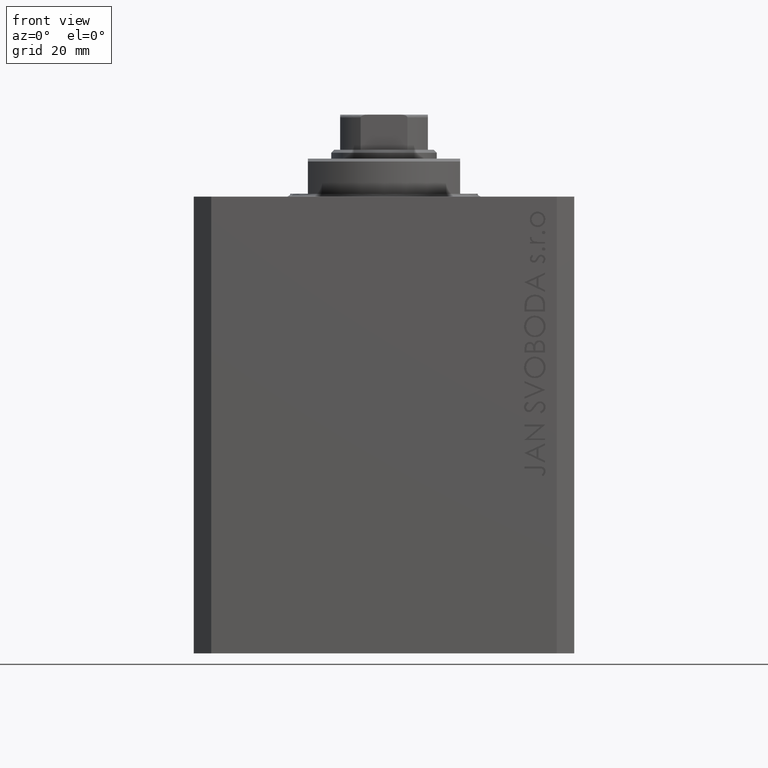
[diagram: clean part render]
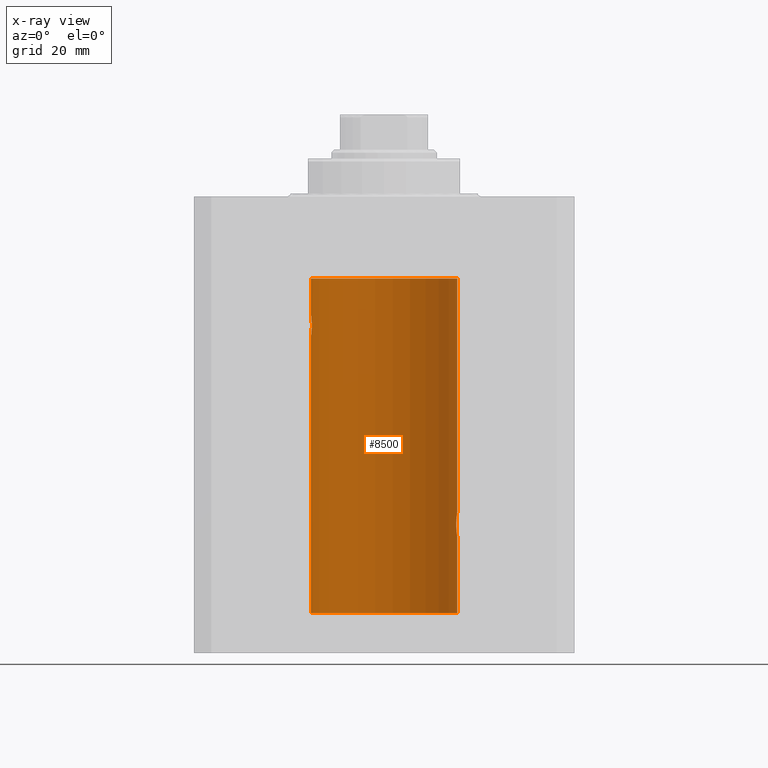
[diagram: x-ray — body ghosted, one internal face saturated and labeled with its STEP entity id]
A machine part, front view, then the same camera in x-ray: the body is ghosted and one INTERNAL B-rep face — a face not visible from any outside direction — is saturated and labeled: STEP entity #8500.
In plain terms, the highlighted cylindrical surface (partial cylindrical patch) has radius 12.5 mm, axis along (0, 0, 1).
Its self-contained STEP definition (entity closure, byte-faithful):
#115 = CARTESIAN_POINT ( 'NONE',  ( 12.49789833780794268, 0.2625555164371063399, -57.98698170822146380 ) ) ;
#707 = CIRCLE ( 'NONE', #4525, 12.50000000000000000 ) ;
#784 = VERTEX_POINT ( 'NONE', #19279 ) ;
#1329 = CARTESIAN_POINT ( 'NONE',  ( -12.50000000000000000, 1.530808426276628993E-15, -23.99999999999999645 ) ) ;
#1397 = VERTEX_POINT ( 'NONE', #9822 ) ;
#1552 = EDGE_CURVE ( 'NONE', #3628, #7653, #11249, .T. ) ;
#2167 = ORIENTED_EDGE ( 'NONE', *, *, #43763, .T. ) ;
#2883 = CARTESIAN_POINT ( 'NONE',  ( 12.50000000000000000, 0.000000000000000000, -71.09999999999999432 ) ) ;
#2994 = CARTESIAN_POINT ( 'NONE',  ( 12.48390005916862933, 0.6457215011736597843, -57.89742771554266909 ) ) ;
#3588 = DIRECTION ( 'NONE',  ( -0.000000000000000000, -0.000000000000000000, 1.000000000000000000 ) ) ;
#3628 = VERTEX_POINT ( 'NONE', #30322 ) ;
#3945 = CARTESIAN_POINT ( 'NONE',  ( 12.50000000000000178, 0.1324055009716459952, -58.00000000000000711 ) ) ;
#4019 = CARTESIAN_POINT ( 'NONE',  ( 12.50000000000000000, 0.000000000000000000, -13.99999999999999822 ) ) ;
#4451 = CARTESIAN_POINT ( 'NONE',  ( -12.37018026341338839, 1.797558627508998086, -22.88656313533016373 ) ) ;
#4515 = DIRECTION ( 'NONE',  ( 1.000000000000000000, 0.000000000000000000, 0.000000000000000000 ) ) ;
#4525 = AXIS2_PLACEMENT_3D ( 'NONE', #26252, #18602, #4515 ) ;
#5444 = LINE ( 'NONE', #23817, #32317 ) ;
#6808 = CARTESIAN_POINT ( 'NONE',  ( 12.34779119491631150, 1.947363444907014518, -56.52502775168252214 ) ) ;
#6949 = CARTESIAN_POINT ( 'NONE',  ( 12.34110728646152211, 1.986893050944461780, -55.73661347764981144 ) ) ;
#7059 = DIRECTION ( 'NONE',  ( -0.000000000000000000, -0.000000000000000000, 1.000000000000000000 ) ) ;
#7653 = VERTEX_POINT ( 'NONE', #21908 ) ;
#7797 = CARTESIAN_POINT ( 'NONE',  ( -12.48990118705761532, 0.5184196815546056047, -20.06395648222637007 ) ) ;
#8039 = CARTESIAN_POINT ( 'NONE',  ( -12.34109209020652465, 1.986986967296539897, -22.26269462454597914 ) ) ;
#8500 = ADVANCED_FACE ( 'NONE', ( #27926 ), #46983, .F. ) ;
#8515 = CARTESIAN_POINT ( 'NONE',  ( -12.48394649977302073, 0.6448065707253024526, -23.89773031393659153 ) ) ;
#8782 = VECTOR ( 'NONE', #3588, 1000.000000000000000 ) ;
#8915 = ORIENTED_EDGE ( 'NONE', *, *, #35787, .F. ) ;
#9206 = ORIENTED_EDGE ( 'NONE', *, *, #45840, .T. ) ;
#9559 = DIRECTION ( 'NONE',  ( 1.000000000000000000, 0.000000000000000000, 0.000000000000000000 ) ) ;
#9822 = CARTESIAN_POINT ( 'NONE',  ( -12.50000000000000000, 1.530808498934191521E-15, -71.09999999999999432 ) ) ;
#10637 = CARTESIAN_POINT ( 'NONE',  ( 12.33896267925302581, 2.000000000000254907, -56.26143174220785426 ) ) ;
#10777 = CARTESIAN_POINT ( 'NONE',  ( 12.39867611624532806, 1.590019252152835794, -54.77984495929610631 ) ) ;
#11011 = CARTESIAN_POINT ( 'NONE',  ( 12.35520276972935250, 1.897773362058245761, -55.35528278634337340 ) ) ;
#11151 = CARTESIAN_POINT ( 'NONE',  ( -12.44076681548080288, 1.220297236145718944, -23.58991408680628155 ) ) ;
#11249 = B_SPLINE_CURVE_WITH_KNOTS ( 'NONE', 3,
 ( #35595, #32707, #6949, #17453, #11011, #21503, #14344, #10777, #14107, #32008, #17686, #43688, #28895, #36291, #43450, #43923, #30716, #29379 ),
 .UNSPECIFIED., .F., .F.,
 ( 4, 2, 2, 2, 2, 2, 2, 2, 4 ),
 ( 0.003132244164174471934, 0.003523586189974247697, 0.003914928215774023459, 0.004306270241573798355, 0.004697612267373574985, 0.005088954293173349880, 0.005480296318973125642, 0.005871638344772901405, 0.006262980370572677168 ),
 .UNSPECIFIED. ) ;
#11385 = CARTESIAN_POINT ( 'NONE',  ( -12.46021263690096958, 1.002494658017156981, -20.26446744561863156 ) ) ;
#11626 = CARTESIAN_POINT ( 'NONE',  ( -12.49789934882883458, 0.2624928479599910047, -20.01301208516349917 ) ) ;
#11862 = CARTESIAN_POINT ( 'NONE',  ( -12.39864157855465088, 1.590288205413973532, -23.21980790594580313 ) ) ;
#12098 = CARTESIAN_POINT ( 'NONE',  ( -12.33895470450623044, 2.000049200055401766, -22.12992629360264729 ) ) ;
#12284 = VERTEX_POINT ( 'NONE', #41413 ) ;
#12974 = CARTESIAN_POINT ( 'NONE',  ( -12.50000000000000000, 1.530808498934191521E-15, -71.09999999999999432 ) ) ;
#13893 = ORIENTED_EDGE ( 'NONE', *, *, #1552, .T. ) ;
#13965 = CARTESIAN_POINT ( 'NONE',  ( 12.44079900692650931, 1.220007525301745277, -57.59017579083666760 ) ) ;
#14107 = CARTESIAN_POINT ( 'NONE',  ( 12.40916530024876963, 1.507117913375724649, -54.67865955049006033 ) ) ;
#14262 = VERTEX_POINT ( 'NONE', #43913 ) ;
#14306 = CARTESIAN_POINT ( 'NONE',  ( 0.000000000000000000, 0.000000000000000000, -71.09999999999999432 ) ) ;
#14344 = CARTESIAN_POINT ( 'NONE',  ( 12.37925647381943506, 1.734744884174225898, -54.99620732598648942 ) ) ;
#15462 = VERTEX_POINT ( 'NONE', #4019 ) ;
#15464 = CIRCLE ( 'NONE', #42096, 12.50000000000000000 ) ;
#17453 = CARTESIAN_POINT ( 'NONE',  ( 12.34924836377099844, 1.935649219704940194, -55.48002062127161338 ) ) ;
#17648 = ORIENTED_EDGE ( 'NONE', *, *, #22832, .F. ) ;
#17665 = DIRECTION ( 'NONE',  ( 0.000000000000000000, 0.000000000000000000, 1.000000000000000000 ) ) ;
#17686 = CARTESIAN_POINT ( 'NONE',  ( 12.44079117518645461, 1.220047488436375227, -54.40989676335082947 ) ) ;
#17779 = CARTESIAN_POINT ( 'NONE',  ( 12.43016561391612029, 1.322713721413891319, -57.50578877836697700 ) ) ;
#18454 = VECTOR ( 'NONE', #7059, 1000.000000000000000 ) ;
#18532 = CARTESIAN_POINT ( 'NONE',  ( -12.34781876294798053, 1.947190906025043633, -21.47436412829509678 ) ) ;
#18602 = DIRECTION ( 'NONE',  ( 0.000000000000000000, 0.000000000000000000, 1.000000000000000000 ) ) ;
#19008 = CARTESIAN_POINT ( 'NONE',  ( -12.48390768591463207, 0.6455696738844916016, -20.10252270298193977 ) ) ;
#19279 = CARTESIAN_POINT ( 'NONE',  ( -12.50000000000000000, 1.530808426276628993E-15, -23.99999999999999645 ) ) ;
#19473 = CARTESIAN_POINT ( 'NONE',  ( -12.49788564268284041, 0.2633501011236127343, -23.98690384766255335 ) ) ;
#20501 = EDGE_CURVE ( 'NONE', #14262, #3628, #42762, .T. ) ;
#21372 = CARTESIAN_POINT ( 'NONE',  ( 12.50000000000000000, -3.070791583031755813E-15, -58.00000000000000000 ) ) ;
#21503 = CARTESIAN_POINT ( 'NONE',  ( 12.37021546997940113, 1.797317011867410219, -55.11295119741077997 ) ) ;
#21603 = CARTESIAN_POINT ( 'NONE',  ( 12.46019522898365395, 1.002712894177340885, -57.73540896027601121 ) ) ;
#21709 = EDGE_CURVE ( 'NONE', #30128, #784, #22749, .T. ) ;
#21908 = CARTESIAN_POINT ( 'NONE',  ( 12.50000000000000000, -7.266276684081261841E-23, -54.00000000000000000 ) ) ;
#22465 = EDGE_CURVE ( 'NONE', #15462, #12284, #707, .T. ) ;
#22592 = CARTESIAN_POINT ( 'NONE',  ( -12.34922241902463114, 1.935814255713574239, -22.51937350851555308 ) ) ;
#22749 = B_SPLINE_CURVE_WITH_KNOTS ( 'NONE', 3,
 ( #29977, #37381, #11626, #7797, #19008, #30213, #11385, #25945, #26178, #36901, #40715, #18532, #44775, #12098, #8039, #22592, #26655, #4451, #44530, #11862, #26420, #33082, #11151, #41198, #37613, #8515, #23066, #19473, #34031, #1329 ),
 .UNSPECIFIED., .F., .F.,
 ( 4, 2, 2, 2, 2, 2, 2, 2, 2, 2, 2, 2, 2, 2, 4 ),
 ( 1.814683826656258666E-20, 0.0003914362731607577369, 0.0007828725463215154739, 0.001174308819482273265, 0.001565745092643030948, 0.002348617638964546530, 0.003131490185286061895, 0.003522926458446825216, 0.003914362731607588103, 0.004305799004768351423, 0.004697235277929114744, 0.005088671551089878065, 0.005480107824250641385, 0.005871544097411404706, 0.006262980370572168026 ),
 .UNSPECIFIED. ) ;
#22832 = EDGE_CURVE ( 'NONE', #30128, #12284, #27759, .T. ) ;
#23066 = CARTESIAN_POINT ( 'NONE',  ( -12.48983485452574982, 0.5201193324741355539, -23.93561774521849372 ) ) ;
#23480 = DIRECTION ( 'NONE',  ( -0.000000000000000000, -0.000000000000000000, 1.000000000000000000 ) ) ;
#23817 = CARTESIAN_POINT ( 'NONE',  ( 12.50000000000000000, 0.000000000000000000, -71.09999999999999432 ) ) ;
#25945 = CARTESIAN_POINT ( 'NONE',  ( -12.44082361696003503, 1.219754986802281449, -20.40963319990594016 ) ) ;
#26178 = CARTESIAN_POINT ( 'NONE',  ( -12.43019346654084956, 1.322451657002078340, -20.49398366327208620 ) ) ;
#26252 = CARTESIAN_POINT ( 'NONE',  ( 0.000000000000000000, 0.000000000000000000, -13.99999999999999822 ) ) ;
#26420 = CARTESIAN_POINT ( 'NONE',  ( -12.40913174964213184, 1.507394620545641439, -23.32102833500698225 ) ) ;
#26655 = CARTESIAN_POINT ( 'NONE',  ( -12.35517291625592051, 1.897967064543089721, -22.64415233770293412 ) ) ;
#26662 = CARTESIAN_POINT ( 'NONE',  ( 12.50000000000000000, 0.000000000000000000, -71.09999999999999432 ) ) ;
#27759 = LINE ( 'NONE', #12974, #28868 ) ;
#27926 = FACE_OUTER_BOUND ( 'NONE', #35379, .T. ) ;
#28526 = CARTESIAN_POINT ( 'NONE',  ( 12.39869754437268767, 1.598954131913735033, -57.22932152813014994 ) ) ;
#28855 = DIRECTION ( 'NONE',  ( -0.000000000000000000, -0.000000000000000000, 1.000000000000000000 ) ) ;
#28868 = VECTOR ( 'NONE', #23480, 1000.000000000000000 ) ;
#28895 = CARTESIAN_POINT ( 'NONE',  ( 12.46910683544638232, 0.8866026273585057016, -54.20247863689694157 ) ) ;
#29379 = CARTESIAN_POINT ( 'NONE',  ( 12.50000000000000000, -7.266276684081261841E-23, -54.00000000000000000 ) ) ;
#29479 = CARTESIAN_POINT ( 'NONE',  ( 12.46901623405144299, 0.8878913781257963267, -57.79689651717551158 ) ) ;
#29977 = CARTESIAN_POINT ( 'NONE',  ( -12.50000000000000000, 1.867773856434666690E-17, -20.00000000000000000 ) ) ;
#30128 = VERTEX_POINT ( 'NONE', #34190 ) ;
#30213 = CARTESIAN_POINT ( 'NONE',  ( -12.46903010196599304, 0.8876934327478135378, -20.20300788371381984 ) ) ;
#30322 = CARTESIAN_POINT ( 'NONE',  ( 12.33896267925302581, 2.000000000000254463, -56.00000000000000000 ) ) ;
#30716 = CARTESIAN_POINT ( 'NONE',  ( 12.50000000000000000, 0.1306079576516677443, -53.99999999999998579 ) ) ;
#32008 = CARTESIAN_POINT ( 'NONE',  ( 12.43037348241797879, 1.320834183883846435, -54.49243837704294435 ) ) ;
#32317 = VECTOR ( 'NONE', #34562, 1000.000000000000000 ) ;
#32707 = CARTESIAN_POINT ( 'NONE',  ( 12.33896267925302226, 2.000000000000254463, -55.86934705949918367 ) ) ;
#33082 = CARTESIAN_POINT ( 'NONE',  ( -12.43034574091277911, 1.321095788880539024, -23.50733550364322255 ) ) ;
#34031 = CARTESIAN_POINT ( 'NONE',  ( -12.50000000000000533, 0.1306394121199390135, -24.00000000000000711 ) ) ;
#34036 = EDGE_CURVE ( 'NONE', #1397, #784, #36879, .T. ) ;
#34190 = CARTESIAN_POINT ( 'NONE',  ( -12.50000000000000000, 1.867773856434666690E-17, -20.00000000000000000 ) ) ;
#34562 = DIRECTION ( 'NONE',  ( -0.000000000000000000, -0.000000000000000000, 1.000000000000000000 ) ) ;
#35160 = ORIENTED_EDGE ( 'NONE', *, *, #34036, .F. ) ;
#35379 = EDGE_LOOP ( 'NONE', ( #35160, #8915, #2167, #36322, #13893, #9206, #37202, #17648, #38832 ) ) ;
#35595 = CARTESIAN_POINT ( 'NONE',  ( 12.33896267925302581, 2.000000000000254463, -56.00000000000000000 ) ) ;
#35787 = EDGE_CURVE ( 'NONE', #43915, #1397, #15464, .T. ) ;
#36153 = CARTESIAN_POINT ( 'NONE',  ( 12.33896267925302581, 2.000000000000254463, -56.00000000000000000 ) ) ;
#36291 = CARTESIAN_POINT ( 'NONE',  ( 12.48395395845270528, 0.6446573166014708534, -54.10222124213518669 ) ) ;
#36322 = ORIENTED_EDGE ( 'NONE', *, *, #20501, .T. ) ;
#36509 = CARTESIAN_POINT ( 'NONE',  ( 0.000000000000000000, 0.000000000000000000, -71.09999999999999432 ) ) ;
#36645 = CARTESIAN_POINT ( 'NONE',  ( -12.50000000000000000, 1.530808498934191521E-15, -71.09999999999999432 ) ) ;
#36879 = LINE ( 'NONE', #36645, #18454 ) ;
#36901 = CARTESIAN_POINT ( 'NONE',  ( -12.39873273758732175, 1.598680238462371062, -20.77033506126851137 ) ) ;
#37202 = ORIENTED_EDGE ( 'NONE', *, *, #22465, .T. ) ;
#37381 = CARTESIAN_POINT ( 'NONE',  ( -12.50000000000000000, 0.1323736289504353625, -20.00000000000000000 ) ) ;
#37613 = CARTESIAN_POINT ( 'NONE',  ( -12.46909283808506430, 0.8868029758979402155, -23.79742491916155345 ) ) ;
#38832 = ORIENTED_EDGE ( 'NONE', *, *, #21709, .T. ) ;
#39491 = CARTESIAN_POINT ( 'NONE',  ( 12.48989642018887203, 0.5185418732824298438, -57.93601292187605623 ) ) ;
#40715 = CARTESIAN_POINT ( 'NONE',  ( -12.37764291807175354, 1.747608771958140794, -20.99316879552500481 ) ) ;
#41198 = CARTESIAN_POINT ( 'NONE',  ( -12.46009879577771606, 1.003863686549169465, -23.73470742397611843 ) ) ;
#41413 = CARTESIAN_POINT ( 'NONE',  ( -12.50000000000000000, 1.530808498934191521E-15, -13.99999999999999822 ) ) ;
#42096 = AXIS2_PLACEMENT_3D ( 'NONE', #36509, #17665, #43424 ) ;
#42762 = B_SPLINE_CURVE_WITH_KNOTS ( 'NONE', 3,
 ( #21372, #3945, #115, #39491, #2994, #29479, #21603, #13965, #17779, #28526, #43068, #6808, #10637, #36153 ),
 .UNSPECIFIED., .F., .F.,
 ( 4, 2, 2, 2, 2, 2, 4 ),
 ( 4.122900576430715099E-18, 0.0003915305205218091544, 0.0007830610410436140804, 0.001174591561565418952, 0.001566122082087223824, 0.002349183123130847879, 0.003132244164174471934 ),
 .UNSPECIFIED. ) ;
#43068 = CARTESIAN_POINT ( 'NONE',  ( 12.37760587642916477, 1.747868572747724114, -57.00639653169000809 ) ) ;
#43424 = DIRECTION ( 'NONE',  ( 1.000000000000000000, 0.000000000000000000, 0.000000000000000000 ) ) ;
#43450 = CARTESIAN_POINT ( 'NONE',  ( 12.48983962833819028, 0.5199974825204922713, -54.06435160808016605 ) ) ;
#43688 = CARTESIAN_POINT ( 'NONE',  ( 12.46011632531799407, 1.003644408234889429, -54.26516799687671266 ) ) ;
#43763 = EDGE_CURVE ( 'NONE', #43915, #14262, #5444, .T. ) ;
#43913 = CARTESIAN_POINT ( 'NONE',  ( 12.50000000000000000, -3.070791583031755813E-15, -58.00000000000000000 ) ) ;
#43915 = VERTEX_POINT ( 'NONE', #26662 ) ;
#43923 = CARTESIAN_POINT ( 'NONE',  ( 12.49788668346400122, 0.2632864803365719264, -54.01308975838332316 ) ) ;
#44530 = CARTESIAN_POINT ( 'NONE',  ( -12.37922086519035325, 1.734998657226764829, -23.00335814299181436 ) ) ;
#44775 = CARTESIAN_POINT ( 'NONE',  ( -12.33897869807161385, 1.999901172190678089, -21.73788193668374547 ) ) ;
#45235 = AXIS2_PLACEMENT_3D ( 'NONE', #14306, #28855, #9559 ) ;
#45840 = EDGE_CURVE ( 'NONE', #7653, #15462, #47011, .T. ) ;
#46983 = CYLINDRICAL_SURFACE ( 'NONE', #45235, 12.50000000000000000 ) ;
#47011 = LINE ( 'NONE', #2883, #8782 ) ;